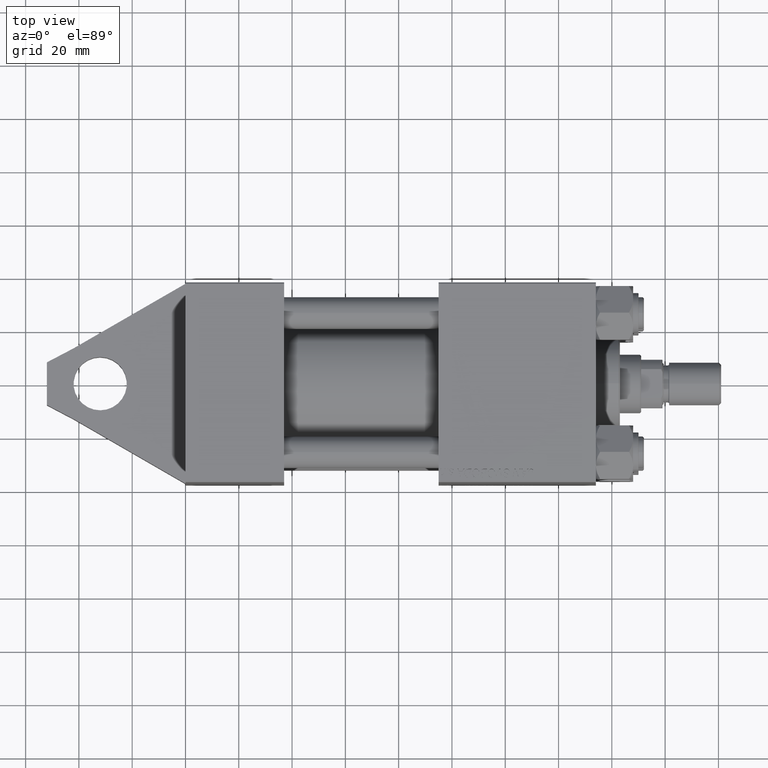
[diagram: clean part render]
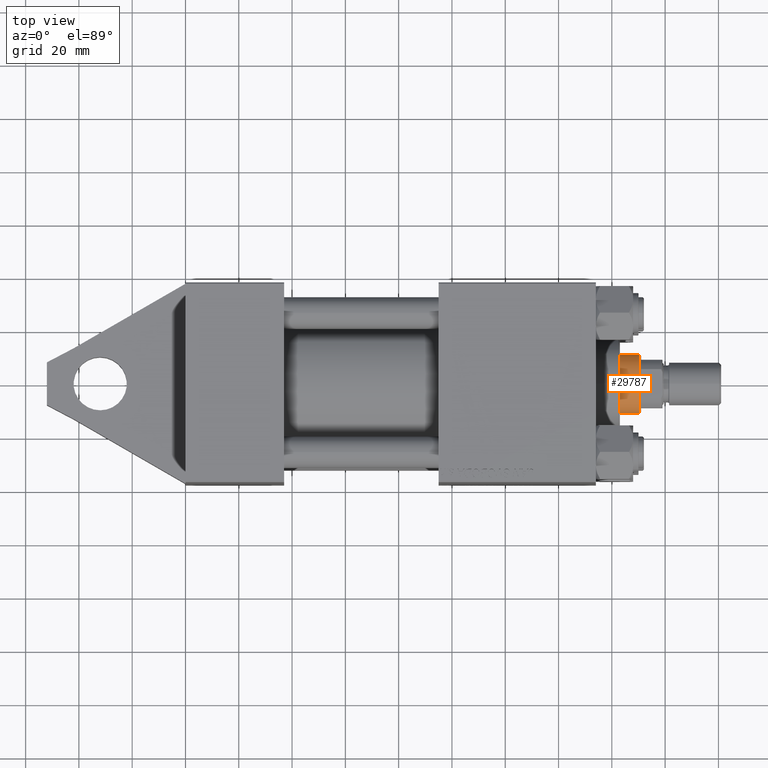
[diagram: same view with one face highlighted and labeled with its STEP entity id]
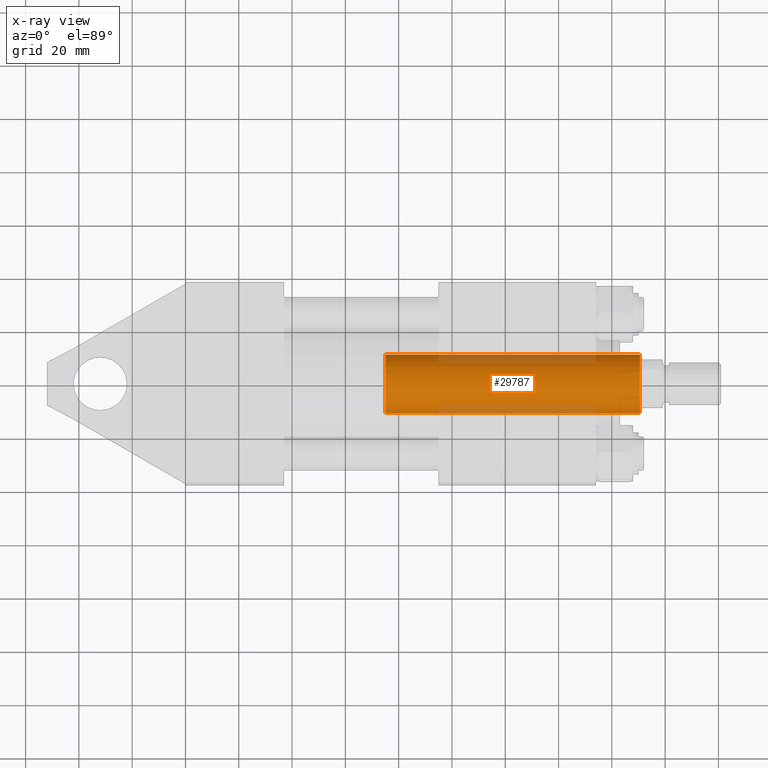
[diagram: x-ray of the same camera — body ghosted, the highlighted face saturated]
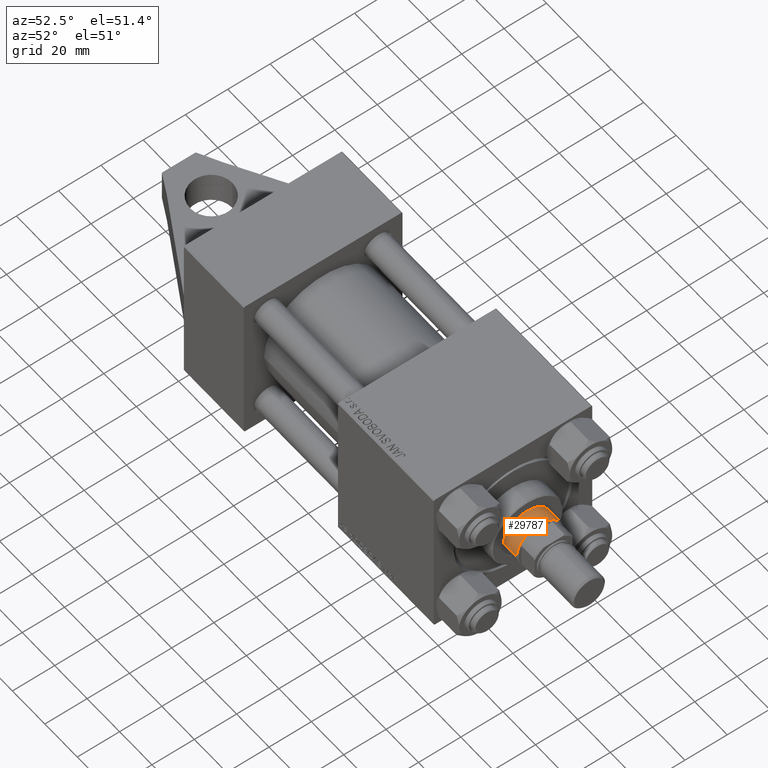
[diagram: same view with one face highlighted and labeled with its STEP entity id]
A machine part, top view. The second image highlights one B-rep face of the part: STEP entity #29787.
The next image is the same camera in x-ray: the body ghosted, the highlighted face saturated — about 17% of this face is hidden behind the body in this view.
A second angle (auxiliary view) of the same face is appended — the face is thin or edge-on in the first view.
In plain terms, the highlighted cylindrical surface (edge-blend (fillet) strip) has radius 11 mm, axis along (-1, -0, 0).
Its self-contained STEP definition (entity closure, byte-faithful):
#1258 = CARTESIAN_POINT ( 'NONE',  ( -11.00000000000000000, 0.000000000000000000, 38.00000000000000000 ) ) ;
#1710 = CYLINDRICAL_SURFACE ( 'NONE', #23371, 11.00000000000000000 ) ;
#2984 = VERTEX_POINT ( 'NONE', #1258 ) ;
#3722 = ORIENTED_EDGE ( 'NONE', *, *, #7290, .T. ) ;
#3744 = VECTOR ( 'NONE', #27396, 1000.000000000000000 ) ;
#4963 = AXIS2_PLACEMENT_3D ( 'NONE', #20796, #38878, #35353 ) ;
#7290 = EDGE_CURVE ( 'NONE', #7856, #16433, #11697, .T. ) ;
#7856 = VERTEX_POINT ( 'NONE', #9057 ) ;
#9057 = CARTESIAN_POINT ( 'NONE',  ( 11.00000000000000000, 1.347111479062088405E-15, 133.5000000000000000 ) ) ;
#9962 = ORIENTED_EDGE ( 'NONE', *, *, #18880, .T. ) ;
#10131 = VERTEX_POINT ( 'NONE', #37532 ) ;
#10585 = DIRECTION ( 'NONE',  ( 1.000000000000000000, 0.000000000000000000, 0.000000000000000000 ) ) ;
#11697 = CIRCLE ( 'NONE', #4963, 11.00000000000000000 ) ;
#11824 = VECTOR ( 'NONE', #29600, 1000.000000000000000 ) ;
#12145 = EDGE_CURVE ( 'NONE', #7856, #10131, #43945, .T. ) ;
#12298 = CARTESIAN_POINT ( 'NONE',  ( 0.000000000000000000, 0.000000000000000000, 134.0000000000000000 ) ) ;
#16433 = VERTEX_POINT ( 'NONE', #34479 ) ;
#16748 = FACE_OUTER_BOUND ( 'NONE', #37339, .T. ) ;
#18481 = ORIENTED_EDGE ( 'NONE', *, *, #26637, .T. ) ;
#18880 = EDGE_CURVE ( 'NONE', #2984, #10131, #23848, .T. ) ;
#20796 = CARTESIAN_POINT ( 'NONE',  ( 0.000000000000000000, 0.000000000000000000, 133.5000000000000000 ) ) ;
#23357 = DIRECTION ( 'NONE',  ( -1.000000000000000000, 0.000000000000000000, 0.000000000000000000 ) ) ;
#23371 = AXIS2_PLACEMENT_3D ( 'NONE', #12298, #33687, #23357 ) ;
#23848 = CIRCLE ( 'NONE', #27608, 11.00000000000000000 ) ;
#25860 = CARTESIAN_POINT ( 'NONE',  ( 11.00000000000000000, 1.347111479062088405E-15, 134.0000000000000000 ) ) ;
#26637 = EDGE_CURVE ( 'NONE', #16433, #2984, #42189, .T. ) ;
#27396 = DIRECTION ( 'NONE',  ( -0.000000000000000000, -0.000000000000000000, -1.000000000000000000 ) ) ;
#27608 = AXIS2_PLACEMENT_3D ( 'NONE', #46309, #42788, #10585 ) ;
#29600 = DIRECTION ( 'NONE',  ( -0.000000000000000000, -0.000000000000000000, -1.000000000000000000 ) ) ;
#29787 = ADVANCED_FACE ( 'NONE', ( #16748 ), #1710, .T. ) ;
#31271 = ORIENTED_EDGE ( 'NONE', *, *, #12145, .F. ) ;
#33687 = DIRECTION ( 'NONE',  ( -0.000000000000000000, -0.000000000000000000, -1.000000000000000000 ) ) ;
#34479 = CARTESIAN_POINT ( 'NONE',  ( -11.00000000000000000, 0.000000000000000000, 133.5000000000000000 ) ) ;
#35353 = DIRECTION ( 'NONE',  ( 1.000000000000000000, 0.000000000000000000, 0.000000000000000000 ) ) ;
#37339 = EDGE_LOOP ( 'NONE', ( #31271, #3722, #18481, #9962 ) ) ;
#37532 = CARTESIAN_POINT ( 'NONE',  ( 11.00000000000000000, 1.347111479062088405E-15, 38.00000000000000000 ) ) ;
#38878 = DIRECTION ( 'NONE',  ( 0.000000000000000000, 0.000000000000000000, -1.000000000000000000 ) ) ;
#42189 = LINE ( 'NONE', #42656, #3744 ) ;
#42656 = CARTESIAN_POINT ( 'NONE',  ( -11.00000000000000000, 0.000000000000000000, 134.0000000000000000 ) ) ;
#42788 = DIRECTION ( 'NONE',  ( 0.000000000000000000, 0.000000000000000000, 1.000000000000000000 ) ) ;
#43945 = LINE ( 'NONE', #25860, #11824 ) ;
#46309 = CARTESIAN_POINT ( 'NONE',  ( 0.000000000000000000, 0.000000000000000000, 38.00000000000000000 ) ) ;